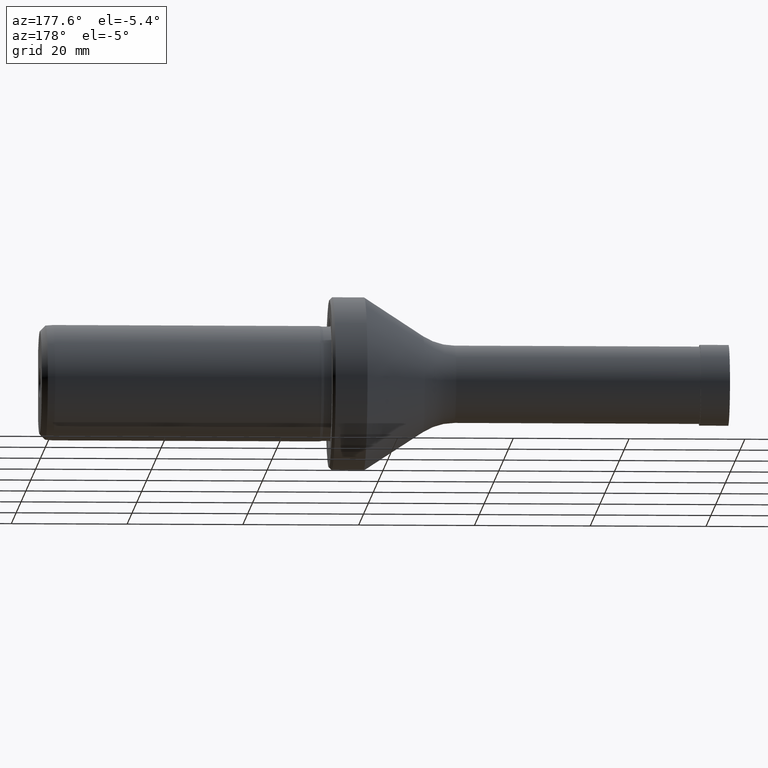
[diagram: clean part render]
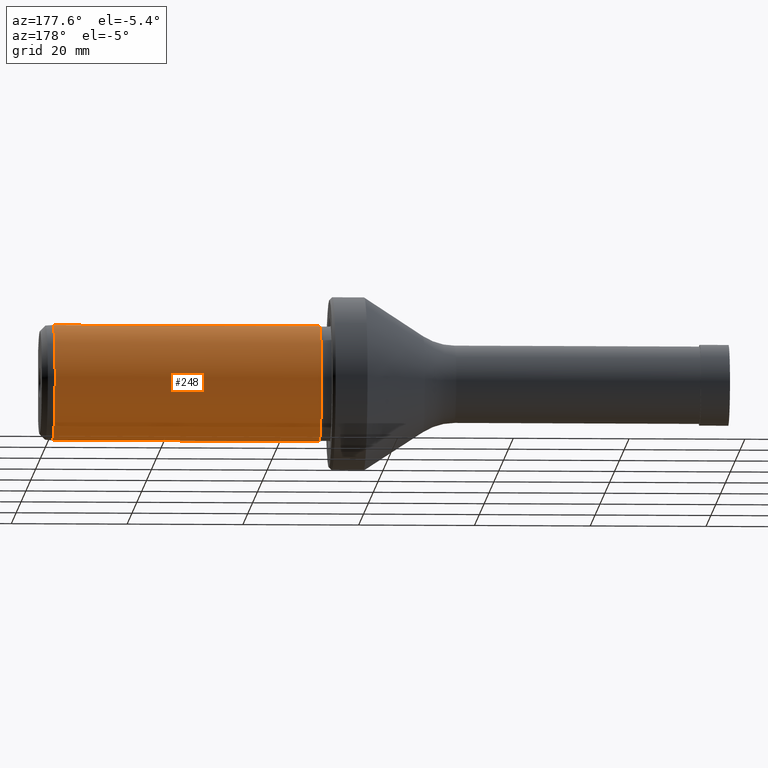
[diagram: same view with one face highlighted and labeled with its STEP entity id]
A machine part, auxiliary view. The second image highlights one B-rep face of the part: STEP entity #248.
In plain terms, the highlighted cylindrical surface (partial cylindrical patch) has radius 10 mm, axis along (-1, -0, -0).
Its self-contained STEP definition (entity closure, byte-faithful):
#10 = DIRECTION ( 'NONE',  ( 0.0000000000000000000, 0.0000000000000000000, 1.000000000000000000 ) ) ;
#66 = CARTESIAN_POINT ( 'NONE',  ( -0.5000000000000005600, 0.0000000000000000000, 0.0000000000000000000 ) ) ;
#85 = CARTESIAN_POINT ( 'NONE',  ( 70.17953698905211000, 0.0000000000000000000, 0.0000000000000000000 ) ) ;
#102 = CARTESIAN_POINT ( 'NONE',  ( -0.5000000000000005600, 1.224646799147353300E-015, -10.00000000000000000 ) ) ;
#210 = AXIS2_PLACEMENT_3D ( 'NONE', #402, #279, #421 ) ;
#246 = CARTESIAN_POINT ( 'NONE',  ( 70.17953698905211000, 0.0000000000000000000, -9.999999999999998200 ) ) ;
#248 = ADVANCED_FACE ( 'NONE', ( #995 ), #1002, .T. ) ;
#279 = DIRECTION ( 'NONE',  ( -1.000000000000000000, -0.0000000000000000000, -0.0000000000000000000 ) ) ;
#280 = AXIS2_PLACEMENT_3D ( 'NONE', #85, #347, #922 ) ;
#302 = DIRECTION ( 'NONE',  ( -1.000000000000000000, -0.0000000000000000000, -0.0000000000000000000 ) ) ;
#341 = CARTESIAN_POINT ( 'NONE',  ( -0.5000000000000005600, 0.0000000000000000000, 10.00000000000000000 ) ) ;
#347 = DIRECTION ( 'NONE',  ( 1.000000000000000000, -0.0000000000000000000, -0.0000000000000000000 ) ) ;
#348 = CARTESIAN_POINT ( 'NONE',  ( 116.2000000000001300, 1.224646799147353300E-015, -10.00000000000000000 ) ) ;
#402 = CARTESIAN_POINT ( 'NONE',  ( 116.2000000000001300, 0.0000000000000000000, 0.0000000000000000000 ) ) ;
#421 = DIRECTION ( 'NONE',  ( 0.0000000000000000000, 0.0000000000000000000, 1.000000000000000000 ) ) ;
#446 = AXIS2_PLACEMENT_3D ( 'NONE', #66, #1203, #10 ) ;
#491 = VERTEX_POINT ( 'NONE', #933 ) ;
#591 = ORIENTED_EDGE ( 'NONE', *, *, #786, .T. ) ;
#614 = VECTOR ( 'NONE', #740, 1000.000000000000000 ) ;
#625 = LINE ( 'NONE', #341, #614 ) ;
#643 = CARTESIAN_POINT ( 'NONE',  ( 116.2000000000001300, 0.0000000000000000000, 10.00000000000000000 ) ) ;
#703 = ORIENTED_EDGE ( 'NONE', *, *, #756, .T. ) ;
#718 = VECTOR ( 'NONE', #302, 1000.000000000000000 ) ;
#724 = EDGE_CURVE ( 'NONE', #779, #491, #862, .T. ) ;
#740 = DIRECTION ( 'NONE',  ( -1.000000000000000000, -0.0000000000000000000, -0.0000000000000000000 ) ) ;
#748 = LINE ( 'NONE', #102, #718 ) ;
#756 = EDGE_CURVE ( 'NONE', #913, #1139, #811, .T. ) ;
#779 = VERTEX_POINT ( 'NONE', #246 ) ;
#786 = EDGE_CURVE ( 'NONE', #1139, #779, #748, .T. ) ;
#811 = CIRCLE ( 'NONE', #210, 10.00000000000000000 ) ;
#862 = CIRCLE ( 'NONE', #280, 10.00000000000000000 ) ;
#868 = EDGE_CURVE ( 'NONE', #913, #491, #625, .T. ) ;
#913 = VERTEX_POINT ( 'NONE', #643 ) ;
#922 = DIRECTION ( 'NONE',  ( 0.0000000000000000000, 0.0000000000000000000, -1.000000000000000000 ) ) ;
#933 = CARTESIAN_POINT ( 'NONE',  ( 70.17953698905211000, 1.224646799147353300E-015, 9.999999999999998200 ) ) ;
#995 = FACE_OUTER_BOUND ( 'NONE', #1173, .T. ) ;
#1002 = CYLINDRICAL_SURFACE ( 'NONE', #446, 10.00000000000000000 ) ;
#1082 = ORIENTED_EDGE ( 'NONE', *, *, #724, .T. ) ;
#1129 = ORIENTED_EDGE ( 'NONE', *, *, #868, .F. ) ;
#1139 = VERTEX_POINT ( 'NONE', #348 ) ;
#1173 = EDGE_LOOP ( 'NONE', ( #703, #591, #1082, #1129 ) ) ;
#1203 = DIRECTION ( 'NONE',  ( -1.000000000000000000, -0.0000000000000000000, -0.0000000000000000000 ) ) ;